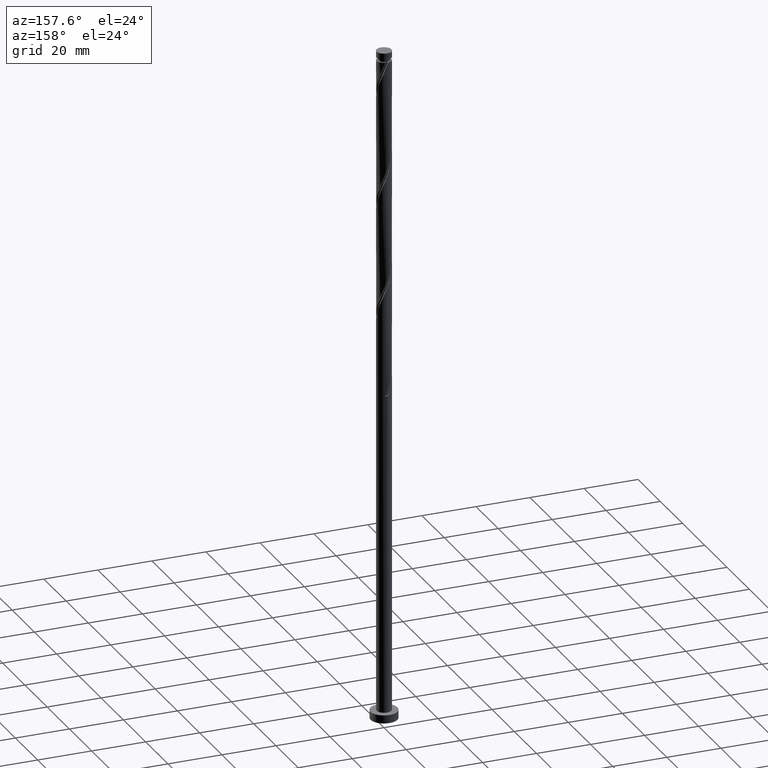
[diagram: clean part render]
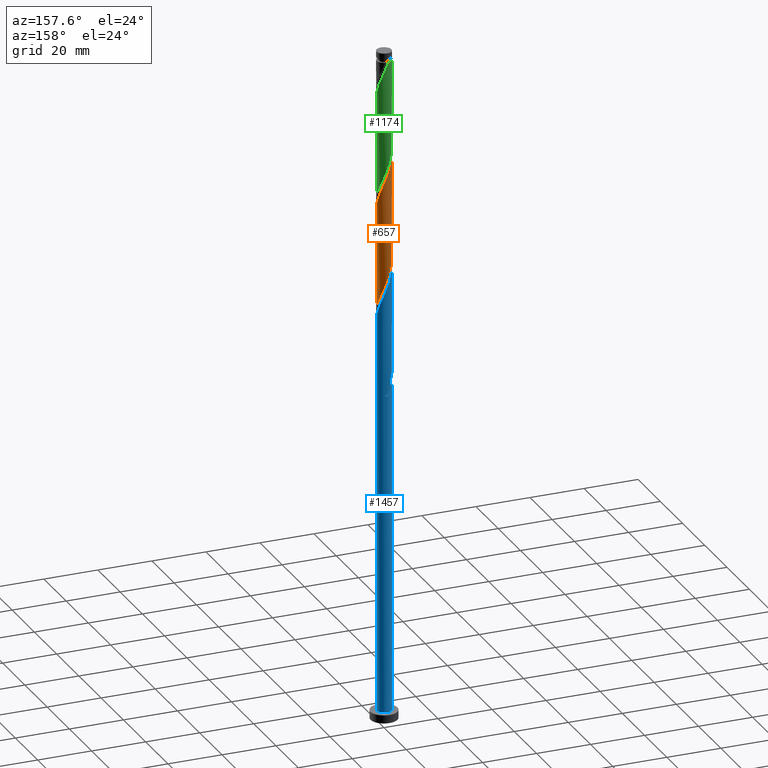
[diagram: same view with three faces highlighted in distinct colors, each labeled with its STEP entity id]
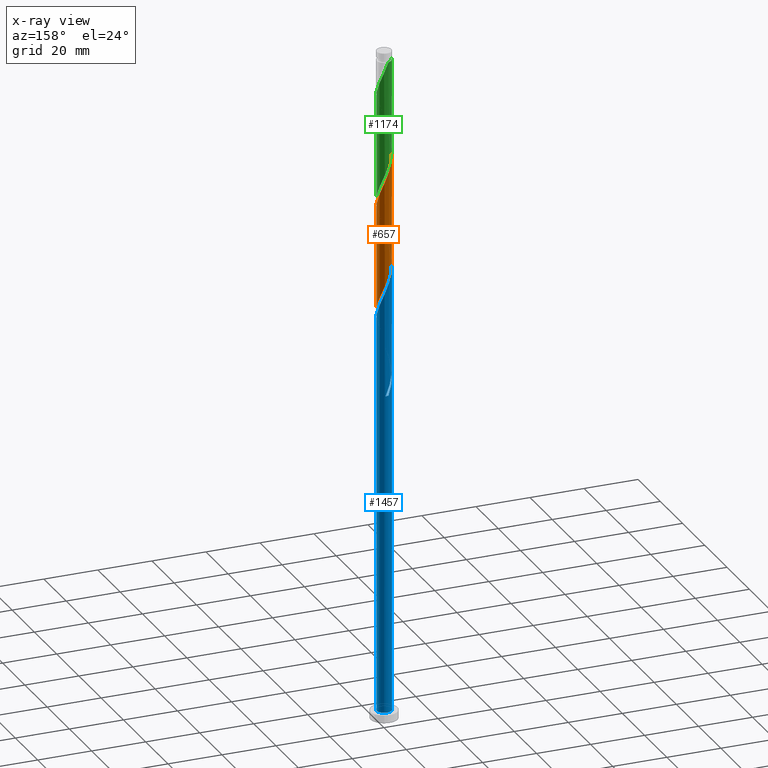
[diagram: x-ray of the same camera — body ghosted, the three highlighted faces saturated]
A machine part, auxiliary view with three faces highlighted in distinct colors.
The next image is the same camera in x-ray (body ghosted, the three faces saturated) — at least one of them is partly hidden behind the body in this view.
Their STEP definitions:

[orange] entity #657 — the highlighted cylindrical surface (edge-blend (fillet) strip) has radius 2.75 mm, axis along (-0, -0, -1).
#30 = CARTESIAN_POINT ( 'NONE',  ( 2.713923848296357022, 0.4439789923501885616, 155.2497441375573430 ) ) ;
#31 = CARTESIAN_POINT ( 'NONE',  ( 2.749999999999999556, 2.811716444257881185E-15, 154.1738198596030429 ) ) ;
#47 = CARTESIAN_POINT ( 'NONE',  ( 2.750000000000000000, 3.367778697655221012E-16, 250.0000000000000000 ) ) ;
#50 = CARTESIAN_POINT ( 'NONE',  ( -1.995858784247014128, 1.921078838710649883, 208.9356415734548023 ) ) ;
#53 = CARTESIAN_POINT ( 'NONE',  ( 2.397607013737352855, 1.387615508300211076, 157.6535902914035034 ) ) ;
#82 = CARTESIAN_POINT ( 'NONE',  ( -2.660015038536180487, 0.7735090083245236281, 212.1407697785830067 ) ) ;
#94 = CARTESIAN_POINT ( 'NONE',  ( 2.750000000000004441, 2.273302657059545426E-15, 193.1846427744859227 ) ) ;
#104 = CARTESIAN_POINT ( 'NONE',  ( 2.503981196414457155, 1.184936436776526492, 196.1151287529419847 ) ) ;
#131 = CARTESIAN_POINT ( 'NONE',  ( 0.5472430904086438286, 2.694999999999998508, 163.2625646503778967 ) ) ;
#141 = CARTESIAN_POINT ( 'NONE',  ( -2.749999999999999556, 1.915855726114013589E-14, 175.0071531929363289 ) ) ;
#181 =( BOUNDED_CURVE ( )  B_SPLINE_CURVE ( 2, ( #94, #196, #1660, #1350, #1044, #104, #1230, #1362, #1671, #1318, #1786, #1106, #1521, #253, #686, #1240, #345, #488, #1812, #334, #897, #50, #928, #226, #793, #82, #382, #523, #1650 ),
 .UNSPECIFIED., .F., .T. ) 
 B_SPLINE_CURVE_WITH_KNOTS ( ( 3, 2, 2, 2, 2, 2, 2, 2, 2, 2, 2, 2, 2, 2, 3 ),
 ( 0.4295271625973832719, 0.4326923076923077094, 0.4423076923076922906, 0.4519230769230768718, 0.4615384615384615641, 0.4711538461538461453, 0.4807692307692307265, 0.4903846153846154188, 0.5000000000000000000, 0.5096153846153845812, 0.5192307692307691624, 0.5288461538461538547, 0.5384615384615384359, 0.5480769230769231282, 0.5545271625973832164 ),
 .UNSPECIFIED. ) 
 CURVE ( )  GEOMETRIC_REPRESENTATION_ITEM ( )  RATIONAL_B_SPLINE_CURVE ( ( 0.9061636035682953949, 0.9069090390690839332, 0.9090909090909405910, 0.9024626128164440209, 0.9090909090909405910, 0.9024626128164440209, 0.9090909090909405910, 0.9024626128164440209, 0.9090909090909405910, 0.9024626128164440209, 0.9090909090909405910, 0.9024626128164440209, 0.9090909090909405910, 0.9024626128164440209, 0.9090909090909405910, 0.9024626128164440209, 0.9090909090909405910, 0.9024626128164440209, 0.9090909090909405910, 0.9024626128164440209, 0.9090909090909405910, 0.9024626128164440209, 0.9090909090909405910, 0.9024626128164440209, 0.9090909090909405910, 0.9024626128164440209, 0.9090909090909405910, 0.9046444828383006787, 0.9061636035682953949 ) ) 
 REPRESENTATION_ITEM ( '' )  );
#196 = CARTESIAN_POINT ( 'NONE',  ( 2.750000000000004441, 0.1093761084261120065, 193.4488136901189250 ) ) ;
#226 = CARTESIAN_POINT ( 'NONE',  ( -2.397607013737356407, 1.387615508300215961, 210.5382056760189187 ) ) ;
#253 = CARTESIAN_POINT ( 'NONE',  ( 0.4472398745841544843, 2.733856742000169149, 202.5253851631983366 ) ) ;
#269 = CARTESIAN_POINT ( 'NONE',  ( -2.147646203141602150, 1.749746260841628764, 170.4741031119162926 ) ) ;
#290 = CARTESIAN_POINT ( 'NONE',  ( -1.666497818918482698, 2.212867192295493002, 168.8715390093522046 ) ) ;
#303 = CARTESIAN_POINT ( 'NONE',  ( 1.478118496867735887, 2.342896049852674079, 160.8587184965316794 ) ) ;
#330 = CARTESIAN_POINT ( 'NONE',  ( 2.749999999999999556, 2.811716444257881185E-15, 154.1738198596030429 ) ) ;
#334 = CARTESIAN_POINT ( 'NONE',  ( -1.478118496867737219, 2.342896049852679852, 207.3330774708906858 ) ) ;
#340 = FACE_OUTER_BOUND ( 'NONE', #1052, .T. ) ;
#345 = CARTESIAN_POINT ( 'NONE',  ( -0.5472430904086431624, 2.695000000000004725, 204.9292313170445254 ) ) ;
#382 = CARTESIAN_POINT ( 'NONE',  ( -2.713923848296361019, 0.4439789923501905600, 212.9420518298650222 ) ) ;
#435 = CARTESIAN_POINT ( 'NONE',  ( 0.8744753351926368712, 2.628552658657902885, 162.4612825990958527 ) ) ;
#488 = CARTESIAN_POINT ( 'NONE',  ( -0.8744753351926366491, 2.628552658657907770, 205.7305133683265979 ) ) ;
#489 = EDGE_CURVE ( 'NONE', #1800, #1674, #181, .T. ) ;
#523 = CARTESIAN_POINT ( 'NONE',  ( -2.750000000000003553, 0.2234552059768777077, 213.4782753704710387 ) ) ;
#527 = ORIENTED_EDGE ( 'NONE', *, *, #489, .F. ) ;
#557 = AXIS2_PLACEMENT_3D ( 'NONE', #901, #1742, #1599 ) ;
#569 = CARTESIAN_POINT ( 'NONE',  ( -0.4472398745841522083, 2.733856742000164264, 165.6664108042240287 ) ) ;
#657 = ADVANCED_FACE ( 'NONE', ( #340 ), #1031, .T. ) ;
#686 = CARTESIAN_POINT ( 'NONE',  ( 0.1136145144797537920, 2.747652041671134082, 203.3266672144804090 ) ) ;
#689 = CARTESIAN_POINT ( 'NONE',  ( -2.749999999999999112, 0.1093761084261270500, 174.7429822773033834 ) ) ;
#704 = CARTESIAN_POINT ( 'NONE',  ( 2.750000000000003997, 2.273302657059545426E-15, 193.1846427744859511 ) ) ;
#705 = CARTESIAN_POINT ( 'NONE',  ( -0.1136145144797505308, 2.747652041671128753, 164.8651287529419562 ) ) ;
#716 = CARTESIAN_POINT ( 'NONE',  ( -2.714793904153014026, 0.5512624140746722468, 173.6792313170444970 ) ) ;
#727 = VECTOR ( 'NONE', #1466, 1000.000000000000000 ) ;
#736 = ORIENTED_EDGE ( 'NONE', *, *, #1668, .F. ) ;
#767 = LINE ( 'NONE', #1062, #1050 ) ;
#771 = VERTEX_POINT ( 'NONE', #31 ) ;
#773 = CARTESIAN_POINT ( 'NONE',  ( -2.750000000000003553, -1.046915697330053620E-16, 214.0179761078192939 ) ) ;
#793 = CARTESIAN_POINT ( 'NONE',  ( -2.528811026136768447, 1.080562258312370183, 211.3394877273009342 ) ) ;
#838 = CARTESIAN_POINT ( 'NONE',  ( -0.7678692567585383433, 2.640620533989138874, 166.4676928555061011 ) ) ;
#845 = EDGE_CURVE ( 'NONE', #1800, #771, #1015, .T. ) ;
#846 = CARTESIAN_POINT ( 'NONE',  ( -2.749999999999999556, 1.915855726114013589E-14, 175.0071531929363289 ) ) ;
#868 = CARTESIAN_POINT ( 'NONE',  ( 1.995858784247011020, 1.921078838710644776, 159.2561543939675914 ) ) ;
#897 = CARTESIAN_POINT ( 'NONE',  ( -1.736988640557376007, 2.131987444281664423, 208.1343595221727014 ) ) ;
#899 = CARTESIAN_POINT ( 'NONE',  ( 2.749999999999999112, 0.2234552059768757648, 154.7135205969513549 ) ) ;
#901 = CARTESIAN_POINT ( 'NONE',  ( 0.000000000000000000, 0.000000000000000000, 250.0000000000000000 ) ) ;
#928 = CARTESIAN_POINT ( 'NONE',  ( -2.196732898992184158, 1.654347173505433144, 209.7369236247368747 ) ) ;
#977 = CARTESIAN_POINT ( 'NONE',  ( -2.741313281104775790, 0.2184067188494087652, 174.4805133683265126 ) ) ;
#985 = CARTESIAN_POINT ( 'NONE',  ( 1.176296916030187489, 2.485724354255287594, 161.6600005478137234 ) ) ;
#997 = CARTESIAN_POINT ( 'NONE',  ( 2.196732898992181937, 1.654347173505428037, 158.4548723426855474 ) ) ;
#1015 = LINE ( 'NONE', #47, #727 ) ;
#1031 = CYLINDRICAL_SURFACE ( 'NONE', #557, 2.750000000000000000 ) ;
#1040 = CARTESIAN_POINT ( 'NONE',  ( 2.528811026136764006, 1.080562258312366630, 156.8523082401214310 ) ) ;
#1044 = CARTESIAN_POINT ( 'NONE',  ( 2.609387550283738477, 0.8680994254255984810, 195.3138467016599691 ) ) ;
#1050 = VECTOR ( 'NONE', #1336, 1000.000000000000000 ) ;
#1052 = EDGE_LOOP ( 'NONE', ( #527, #1701, #1528, #736 ) ) ;
#1062 = CARTESIAN_POINT ( 'NONE',  ( -2.750000000000000000, 0.000000000000000000, 250.0000000000000000 ) ) ;
#1106 = CARTESIAN_POINT ( 'NONE',  ( 1.088498638932927420, 2.547384325978119257, 200.9228210606343055 ) ) ;
#1131 = CARTESIAN_POINT ( 'NONE',  ( -1.088498638932923868, 2.547384325978113928, 167.2689749067881451 ) ) ;
#1230 = CARTESIAN_POINT ( 'NONE',  ( 2.325813699778032095, 1.467341348809079626, 196.9164108042240287 ) ) ;
#1233 = VERTEX_POINT ( 'NONE', #846 ) ;
#1240 = CARTESIAN_POINT ( 'NONE',  ( -0.2200108456246495370, 2.761447341342100348, 204.1279492657624530 ) ) ;
#1245 = EDGE_CURVE ( 'NONE', #1233, #771, #1695, .T. ) ;
#1257 = CARTESIAN_POINT ( 'NONE',  ( 1.736988640557374453, 2.131987444281659094, 160.0574364452496638 ) ) ;
#1318 = CARTESIAN_POINT ( 'NONE',  ( 1.666497818918487361, 2.212867192295495666, 199.3202569580702175 ) ) ;
#1336 = DIRECTION ( 'NONE',  ( -0.000000000000000000, -0.000000000000000000, -1.000000000000000000 ) ) ;
#1350 = CARTESIAN_POINT ( 'NONE',  ( 2.714793904153019355, 0.5512624140746722468, 194.5125646503778967 ) ) ;
#1362 = CARTESIAN_POINT ( 'NONE',  ( 2.147646203141607479, 1.749746260841630097, 197.7176928555061011 ) ) ;
#1393 = CARTESIAN_POINT ( 'NONE',  ( 0.2200108456246512301, 2.761447341342095019, 164.0638467016598838 ) ) ;
#1403 = CARTESIAN_POINT ( 'NONE',  ( -1.377498228925702728, 2.380125759136805463, 168.0702569580701606 ) ) ;
#1466 = DIRECTION ( 'NONE',  ( -0.000000000000000000, -0.000000000000000000, -1.000000000000000000 ) ) ;
#1521 = CARTESIAN_POINT ( 'NONE',  ( 0.7678692567585421180, 2.640620533989142871, 201.7241031119163210 ) ) ;
#1528 = ORIENTED_EDGE ( 'NONE', *, *, #1245, .F. ) ;
#1537 = CARTESIAN_POINT ( 'NONE',  ( -2.325813699778025434, 1.467341348809077628, 171.2753851631983650 ) ) ;
#1570 = CARTESIAN_POINT ( 'NONE',  ( -1.907072011030042091, 1.981306726568561771, 169.6728210606342770 ) ) ;
#1599 = DIRECTION ( 'NONE',  ( -1.000000000000000000, 0.000000000000000000, 0.000000000000000000 ) ) ;
#1650 = CARTESIAN_POINT ( 'NONE',  ( -2.750000000000003553, -1.046915697330053743E-16, 214.0179761078192939 ) ) ;
#1660 = CARTESIAN_POINT ( 'NONE',  ( 2.741313281104781119, 0.2184067188494067391, 193.7112825990957958 ) ) ;
#1668 = EDGE_CURVE ( 'NONE', #1674, #1233, #767, .T. ) ;
#1671 = CARTESIAN_POINT ( 'NONE',  ( 1.907072011030046754, 1.981306726568563992, 198.5189749067881451 ) ) ;
#1674 = VERTEX_POINT ( 'NONE', #773 ) ;
#1686 = CARTESIAN_POINT ( 'NONE',  ( -2.503981196414451382, 1.184936436776526492, 172.0766672144803806 ) ) ;
#1695 =( BOUNDED_CURVE ( )  B_SPLINE_CURVE ( 2, ( #141, #689, #977, #716, #1818, #1686, #1537, #269, #1570, #290, #1403, #1131, #838, #569, #705, #1393, #131, #435, #985, #303, #1257, #868, #997, #53, #1040, #1730, #30, #899, #330 ),
 .UNSPECIFIED., .F., .T. ) 
 B_SPLINE_CURVE_WITH_KNOTS ( ( 3, 2, 2, 2, 2, 2, 2, 2, 2, 2, 2, 2, 2, 2, 3 ),
 ( 0.6795271625973836604, 0.6826923076923077094, 0.6923076923076922906, 0.7019230769230768718, 0.7115384615384615641, 0.7211538461538461453, 0.7307692307692307265, 0.7403846153846154188, 0.7500000000000000000, 0.7596153846153845812, 0.7692307692307692735, 0.7788461538461538547, 0.7884615384615384359, 0.7980769230769231282, 0.8045271625973832164 ),
 .UNSPECIFIED. ) 
 CURVE ( )  GEOMETRIC_REPRESENTATION_ITEM ( )  RATIONAL_B_SPLINE_CURVE ( ( 0.9061636035682884005, 0.9069090390690770498, 0.9090909090909334855, 0.9024626128164369154, 0.9090909090909334855, 0.9024626128164369154, 0.9090909090909334855, 0.9024626128164369154, 0.9090909090909334855, 0.9024626128164369154, 0.9090909090909334855, 0.9024626128164369154, 0.9090909090909334855, 0.9024626128164369154, 0.9090909090909334855, 0.9024626128164369154, 0.9090909090909334855, 0.9024626128164369154, 0.9090909090909334855, 0.9024626128164369154, 0.9090909090909334855, 0.9024626128164369154, 0.9090909090909334855, 0.9024626128164369154, 0.9090909090909334855, 0.9024626128164369154, 0.9090909090909334855, 0.9046444828382935732, 0.9061636035682881785 ) ) 
 REPRESENTATION_ITEM ( '' )  );
#1701 = ORIENTED_EDGE ( 'NONE', *, *, #845, .T. ) ;
#1730 = CARTESIAN_POINT ( 'NONE',  ( 2.660015038536175602, 0.7735090083245201864, 156.0510261888393018 ) ) ;
#1742 = DIRECTION ( 'NONE',  ( -0.000000000000000000, -0.000000000000000000, -1.000000000000000000 ) ) ;
#1786 = CARTESIAN_POINT ( 'NONE',  ( 1.377498228925707391, 2.380125759136808128, 200.1215390093522331 ) ) ;
#1800 = VERTEX_POINT ( 'NONE', #704 ) ;
#1812 = CARTESIAN_POINT ( 'NONE',  ( -1.176296916030186823, 2.485724354255293811, 206.5317954196086703 ) ) ;
#1818 = CARTESIAN_POINT ( 'NONE',  ( -2.609387550283733592, 0.8680994254255998133, 172.8779492657625099 ) ) ;

[blue] entity #1457 — the highlighted cylindrical surface (edge-blend (fillet) strip) has radius 2.75 mm, axis along (-0, -0, -1).
#4 = CARTESIAN_POINT ( 'NONE',  ( -1.666497818918482698, 2.212867192295493002, 127.2048723426855474 ) ) ;
#5 = CARTESIAN_POINT ( 'NONE',  ( -0.5472430904086431624, 2.695000000000004725, 163.2625646503779251 ) ) ;
#23 = CARTESIAN_POINT ( 'NONE',  ( 2.503981196414457155, 1.184936436776526492, 154.4484620862753275 ) ) ;
#32 = CARTESIAN_POINT ( 'NONE',  ( 0.000000000000000000, 0.000000000000000000, 3.000000000000000000 ) ) ;
#62 = ORIENTED_EDGE ( 'NONE', *, *, #583, .T. ) ;
#90 = EDGE_CURVE ( 'NONE', #968, #119, #1585, .T. ) ;
#118 = ORIENTED_EDGE ( 'NONE', *, *, #1222, .F. ) ;
#119 = VERTEX_POINT ( 'NONE', #1032 ) ;
#121 = CARTESIAN_POINT ( 'NONE',  ( -0.8744753351926366491, 2.628552658657907770, 164.0638467016599407 ) ) ;
#127 = EDGE_CURVE ( 'NONE', #1231, #968, #1468, .T. ) ;
#130 = VECTOR ( 'NONE', #1208, 1000.000000000000000 ) ;
#133 = CARTESIAN_POINT ( 'NONE',  ( 0.5472430904086438286, 2.694999999999998508, 121.5958979837111826 ) ) ;
#137 = LINE ( 'NONE', #1235, #875 ) ;
#150 = CARTESIAN_POINT ( 'NONE',  ( -2.609387550283733592, 0.8680994254255998133, 131.2112825990958527 ) ) ;
#151 = CARTESIAN_POINT ( 'NONE',  ( 2.714793904153019355, 0.5512624140746722468, 152.8458979837112395 ) ) ;
#168 = CARTESIAN_POINT ( 'NONE',  ( -1.176296916030186823, 2.485724354255293811, 123.1984620862752848 ) ) ;
#183 = DIRECTION ( 'NONE',  ( 0.000000000000000000, 0.000000000000000000, 1.000000000000000000 ) ) ;
#190 = EDGE_CURVE ( 'NONE', #902, #119, #137, .T. ) ;
#206 = LINE ( 'NONE', #753, #671 ) ;
#258 = CARTESIAN_POINT ( 'NONE',  ( -1.088498638932923868, 2.547384325978113928, 125.6023082401214168 ) ) ;
#260 = CARTESIAN_POINT ( 'NONE',  ( -1.736988640557376007, 2.131987444281664423, 166.4676928555061011 ) ) ;
#278 = CARTESIAN_POINT ( 'NONE',  ( -2.325813699778025434, 1.467341348809077628, 129.6087184965316794 ) ) ;
#281 = CARTESIAN_POINT ( 'NONE',  ( -2.713923848296361019, 0.4439789923501905600, 171.2753851631983650 ) ) ;
#292 = DIRECTION ( 'NONE',  ( 0.000000000000000000, 1.000000000000000000, -3.532527805625498141E-14 ) ) ;
#312 = CARTESIAN_POINT ( 'NONE',  ( -2.660015038536180487, 0.7735090083245236281, 128.8074364452496638 ) ) ;
#320 = CARTESIAN_POINT ( 'NONE',  ( -2.750000000000003553, 0.2234552059768777077, 130.1449420371376675 ) ) ;
#338 = ORIENTED_EDGE ( 'NONE', *, *, #90, .T. ) ;
#347 = EDGE_LOOP ( 'NONE', ( #1387, #880, #338, #759, #560, #62, #118, #607 ) ) ;
#371 =( BOUNDED_CURVE ( )  B_SPLINE_CURVE ( 2, ( #1259, #1828, #419, #151, #1290, #23, #1279, #599, #570, #1693, #1680, #408, #978, #969, #707, #1531, #5, #121, #579, #1134, #260, #591, #830, #1388, #1539, #986, #281, #848, #1329 ),
 .UNSPECIFIED., .F., .T. ) 
 B_SPLINE_CURVE_WITH_KNOTS ( ( 3, 2, 2, 2, 2, 2, 2, 2, 2, 2, 2, 2, 2, 2, 3 ),
 ( 0.1795271625973832164, 0.1826923076923077094, 0.1923076923076922906, 0.2019230769230768718, 0.2115384615384615641, 0.2211538461538461453, 0.2307692307692307265, 0.2403846153846154188, 0.2500000000000000000, 0.2596153846153845812, 0.2692307692307692735, 0.2788461538461538547, 0.2884615384615384359, 0.2980769230769231282, 0.3045271625973833829 ),
 .UNSPECIFIED. ) 
 CURVE ( )  GEOMETRIC_REPRESENTATION_ITEM ( )  RATIONAL_B_SPLINE_CURVE ( ( 0.9061636035682953949, 0.9069090390690839332, 0.9090909090909405910, 0.9024626128164440209, 0.9090909090909405910, 0.9024626128164440209, 0.9090909090909405910, 0.9024626128164440209, 0.9090909090909405910, 0.9024626128164440209, 0.9090909090909405910, 0.9024626128164440209, 0.9090909090909405910, 0.9024626128164440209, 0.9090909090909405910, 0.9024626128164440209, 0.9090909090909405910, 0.9024626128164440209, 0.9090909090909405910, 0.9024626128164440209, 0.9090909090909405910, 0.9024626128164440209, 0.9090909090909405910, 0.9024626128164440209, 0.9090909090909405910, 0.9024626128164440209, 0.9090909090909405910, 0.9046444828383005676, 0.9061636035682955059 ) ) 
 REPRESENTATION_ITEM ( '' )  );
#408 = CARTESIAN_POINT ( 'NONE',  ( 1.088498638932927420, 2.547384325978119257, 159.2561543939676199 ) ) ;
#418 = CARTESIAN_POINT ( 'NONE',  ( 2.750000000000003997, 2.273302657059545426E-15, 151.5179761078192939 ) ) ;
#419 = CARTESIAN_POINT ( 'NONE',  ( 2.741313281104781119, 0.2184067188494067391, 152.0446159324291671 ) ) ;
#424 = CARTESIAN_POINT ( 'NONE',  ( -0.4472398745841522083, 2.733856742000164264, 123.9997441375573146 ) ) ;
#430 = DIRECTION ( 'NONE',  ( -0.000000000000000000, -0.000000000000000000, -1.000000000000000000 ) ) ;
#434 =( BOUNDED_CURVE ( )  B_SPLINE_CURVE ( 2, ( #1304, #461, #168, #613, #453, #1598, #1154, #885, #1313, #312, #1741, #320, #1447 ),
 .UNSPECIFIED., .F., .T. ) 
 B_SPLINE_CURVE_WITH_KNOTS ( ( 3, 2, 2, 2, 2, 2, 3 ),
 ( 0.000000000000000000, 0.009615384615384582959, 0.01923076923076927347, 0.02884615384615385469, 0.03846153846153842898, 0.04807692307692312816, 0.05452716259738321636 ),
 .UNSPECIFIED. ) 
 CURVE ( )  GEOMETRIC_REPRESENTATION_ITEM ( )  RATIONAL_B_SPLINE_CURVE ( ( 0.9090909090909405910, 0.9024626128164440209, 0.9090909090909405910, 0.9024626128164440209, 0.9090909090909405910, 0.9024626128164440209, 0.9090909090909405910, 0.9024626128164440209, 0.9090909090909405910, 0.9024626128164440209, 0.9090909090909405910, 0.9046444828383006787, 0.9061636035682953949 ) ) 
 REPRESENTATION_ITEM ( '' )  );
#444 = CARTESIAN_POINT ( 'NONE',  ( -0.1136145144797505308, 2.747652041671128753, 123.1984620862752848 ) ) ;
#453 = CARTESIAN_POINT ( 'NONE',  ( -1.736988640557376007, 2.131987444281664423, 124.8010261888394012 ) ) ;
#461 = CARTESIAN_POINT ( 'NONE',  ( -0.8744753351926366491, 2.628552658657907770, 122.3971800349932408 ) ) ;
#483 = DIRECTION ( 'NONE',  ( -0.000000000000000000, -0.000000000000000000, -1.000000000000000000 ) ) ;
#559 = CARTESIAN_POINT ( 'NONE',  ( -1.907072011030042091, 1.981306726568561771, 128.0061543939676199 ) ) ;
#560 = ORIENTED_EDGE ( 'NONE', *, *, #1269, .F. ) ;
#562 = DIRECTION ( 'NONE',  ( -1.120541058552572224E-29, -3.784851220313032054E-14, -1.000000000000000000 ) ) ;
#570 = CARTESIAN_POINT ( 'NONE',  ( 1.907072011030046754, 1.981306726568563992, 156.8523082401214594 ) ) ;
#576 = CARTESIAN_POINT ( 'NONE',  ( 0.2200108456246512301, 2.761447341342095019, 122.3971800349932550 ) ) ;
#579 = CARTESIAN_POINT ( 'NONE',  ( -1.176296916030186823, 2.485724354255293811, 164.8651287529420131 ) ) ;
#583 = EDGE_CURVE ( 'NONE', #1692, #612, #1284, .T. ) ;
#591 = CARTESIAN_POINT ( 'NONE',  ( -1.995858784247014128, 1.921078838710649883, 167.2689749067881166 ) ) ;
#599 = CARTESIAN_POINT ( 'NONE',  ( 2.147646203141607479, 1.749746260841630097, 156.0510261888393870 ) ) ;
#603 = FACE_OUTER_BOUND ( 'NONE', #347, .T. ) ;
#607 = ORIENTED_EDGE ( 'NONE', *, *, #870, .F. ) ;
#612 = VERTEX_POINT ( 'NONE', #133 ) ;
#613 = CARTESIAN_POINT ( 'NONE',  ( -1.478118496867737219, 2.342896049852679852, 123.9997441375573288 ) ) ;
#623 = EDGE_CURVE ( 'NONE', #1231, #1795, #371, .T. ) ;
#648 = CARTESIAN_POINT ( 'NONE',  ( -0.5472430904086430514, 2.695000000000004281, 121.5958979837111826 ) ) ;
#671 = VECTOR ( 'NONE', #1024, 1000.000000000000000 ) ;
#707 = CARTESIAN_POINT ( 'NONE',  ( 0.1136145144797537920, 2.747652041671134082, 161.6600005478137518 ) ) ;
#753 = CARTESIAN_POINT ( 'NONE',  ( -2.750000000000000000, 0.000000000000000000, 250.0000000000000000 ) ) ;
#759 = ORIENTED_EDGE ( 'NONE', *, *, #190, .F. ) ;
#805 = CARTESIAN_POINT ( 'NONE',  ( -2.749999999999999556, 3.798808387454795695E-15, 133.3404865262697001 ) ) ;
#828 = CARTESIAN_POINT ( 'NONE',  ( 0.5472430904086438286, 2.694999999999998508, 121.5958979837111826 ) ) ;
#830 = CARTESIAN_POINT ( 'NONE',  ( -2.196732898992184158, 1.654347173505433144, 168.0702569580701891 ) ) ;
#839 = CARTESIAN_POINT ( 'NONE',  ( 0.000000000000000000, 0.000000000000000000, 121.5958979837112821 ) ) ;
#848 = CARTESIAN_POINT ( 'NONE',  ( -2.750000000000003997, 0.2234552059768719623, 171.8116087038042963 ) ) ;
#870 = EDGE_CURVE ( 'NONE', #1795, #1623, #206, .T. ) ;
#875 = VECTOR ( 'NONE', #430, 1000.000000000000000 ) ;
#880 = ORIENTED_EDGE ( 'NONE', *, *, #127, .T. ) ;
#885 = CARTESIAN_POINT ( 'NONE',  ( -2.397607013737356407, 1.387615508300215961, 127.2048723426855759 ) ) ;
#902 = VERTEX_POINT ( 'NONE', #1315 ) ;
#961 = CARTESIAN_POINT ( 'NONE',  ( 2.750000000000000000, 3.367778697655221012E-16, 3.000000000000000000 ) ) ;
#968 = VERTEX_POINT ( 'NONE', #961 ) ;
#969 = CARTESIAN_POINT ( 'NONE',  ( 0.4472398745841544843, 2.733856742000169149, 160.8587184965317078 ) ) ;
#978 = CARTESIAN_POINT ( 'NONE',  ( 0.7678692567585421180, 2.640620533989142871, 160.0574364452496638 ) ) ;
#986 = CARTESIAN_POINT ( 'NONE',  ( -2.660015038536180487, 0.7735090083245236281, 170.4741031119163210 ) ) ;
#1006 = CARTESIAN_POINT ( 'NONE',  ( -2.749999999999999112, 0.1093761084261270500, 133.0763156106367546 ) ) ;
#1024 = DIRECTION ( 'NONE',  ( -0.000000000000000000, -0.000000000000000000, -1.000000000000000000 ) ) ;
#1025 = DIRECTION ( 'NONE',  ( 1.000000000000000000, 0.000000000000000000, 0.000000000000000000 ) ) ;
#1032 = CARTESIAN_POINT ( 'NONE',  ( -2.750000000000000000, 0.000000000000000000, 3.000000000000000000 ) ) ;
#1112 = CARTESIAN_POINT ( 'NONE',  ( -2.503981196414451382, 1.184936436776526492, 130.4100005478137518 ) ) ;
#1134 = CARTESIAN_POINT ( 'NONE',  ( -1.478118496867737219, 2.342896049852679852, 165.6664108042240002 ) ) ;
#1143 = CARTESIAN_POINT ( 'NONE',  ( -2.741313281104775790, 0.2184067188494087652, 132.8138467016599122 ) ) ;
#1154 = CARTESIAN_POINT ( 'NONE',  ( -2.196732898992184158, 1.654347173505433144, 126.4035902914034892 ) ) ;
#1194 = CARTESIAN_POINT ( 'NONE',  ( 2.750000000000000000, 3.367778697655221012E-16, 250.0000000000000000 ) ) ;
#1208 = DIRECTION ( 'NONE',  ( -0.000000000000000000, -0.000000000000000000, -1.000000000000000000 ) ) ;
#1222 = EDGE_CURVE ( 'NONE', #1623, #612, #1499, .T. ) ;
#1231 = VERTEX_POINT ( 'NONE', #418 ) ;
#1235 = CARTESIAN_POINT ( 'NONE',  ( -2.750000000000000000, 0.000000000000000000, 250.0000000000000000 ) ) ;
#1259 = CARTESIAN_POINT ( 'NONE',  ( 2.750000000000004441, 2.273302657059545426E-15, 151.5179761078192939 ) ) ;
#1266 = CARTESIAN_POINT ( 'NONE',  ( -2.714793904153014026, 0.5512624140746722468, 132.0125646503778682 ) ) ;
#1269 = EDGE_CURVE ( 'NONE', #1692, #902, #434, .T. ) ;
#1278 = CARTESIAN_POINT ( 'NONE',  ( -0.7678692567585383433, 2.640620533989138874, 124.8010261888393870 ) ) ;
#1279 = CARTESIAN_POINT ( 'NONE',  ( 2.325813699778032095, 1.467341348809079626, 155.2497441375573430 ) ) ;
#1284 = CIRCLE ( 'NONE', #1738, 2.750000000000000000 ) ;
#1290 = CARTESIAN_POINT ( 'NONE',  ( 2.609387550283738477, 0.8680994254255984810, 153.6471800349932266 ) ) ;
#1304 = CARTESIAN_POINT ( 'NONE',  ( -0.5472430904086430514, 2.695000000000004725, 121.5958979837111826 ) ) ;
#1313 = CARTESIAN_POINT ( 'NONE',  ( -2.528811026136768447, 1.080562258312370183, 128.0061543939676199 ) ) ;
#1315 = CARTESIAN_POINT ( 'NONE',  ( -2.750000000000003553, 5.010239408650972167E-15, 130.6846427744859795 ) ) ;
#1320 = DIRECTION ( 'NONE',  ( -1.000000000000000000, 0.000000000000000000, 0.000000000000000000 ) ) ;
#1329 = CARTESIAN_POINT ( 'NONE',  ( -2.750000000000003553, 5.010239408650972956E-15, 172.3513094411526367 ) ) ;
#1387 = ORIENTED_EDGE ( 'NONE', *, *, #623, .F. ) ;
#1388 = CARTESIAN_POINT ( 'NONE',  ( -2.397607013737356407, 1.387615508300215961, 168.8715390093522331 ) ) ;
#1400 = CARTESIAN_POINT ( 'NONE',  ( -2.750000000000003553, 5.010239408650972167E-15, 172.3513094411526367 ) ) ;
#1432 = CYLINDRICAL_SURFACE ( 'NONE', #1487, 2.750000000000000000 ) ;
#1447 = CARTESIAN_POINT ( 'NONE',  ( -2.750000000000003553, 5.010239408650972167E-15, 130.6846427744859795 ) ) ;
#1457 = ADVANCED_FACE ( 'NONE', ( #603 ), #1432, .T. ) ;
#1468 = LINE ( 'NONE', #1194, #130 ) ;
#1487 = AXIS2_PLACEMENT_3D ( 'NONE', #1605, #483, #1320 ) ;
#1499 =( BOUNDED_CURVE ( )  B_SPLINE_CURVE ( 2, ( #1700, #1006, #1143, #1266, #150, #1112, #278, #1527, #559, #4, #1710, #258, #1278, #424, #444, #576, #828 ),
 .UNSPECIFIED., .F., .T. ) 
 B_SPLINE_CURVE_WITH_KNOTS ( ( 3, 2, 2, 2, 2, 2, 2, 2, 3 ),
 ( 0.9295271625973836604, 0.9326923076923077094, 0.9423076923076922906, 0.9519230769230768718, 0.9615384615384615641, 0.9711538461538461453, 0.9807692307692307265, 0.9903846153846154188, 1.000000000000000000 ),
 .UNSPECIFIED. ) 
 CURVE ( )  GEOMETRIC_REPRESENTATION_ITEM ( )  RATIONAL_B_SPLINE_CURVE ( ( 0.9061636035682884005, 0.9069090390690770498, 0.9090909090909334855, 0.9024626128164369154, 0.9090909090909334855, 0.9024626128164369154, 0.9090909090909334855, 0.9024626128164369154, 0.9090909090909334855, 0.9024626128164369154, 0.9090909090909334855, 0.9024626128164369154, 0.9090909090909334855, 0.9024626128164369154, 0.9090909090909334855, 0.9024626128164369154, 0.9090909090909334855 ) ) 
 REPRESENTATION_ITEM ( '' )  );
#1527 = CARTESIAN_POINT ( 'NONE',  ( -2.147646203141602150, 1.749746260841628764, 128.8074364452496070 ) ) ;
#1531 = CARTESIAN_POINT ( 'NONE',  ( -0.2200108456246495370, 2.761447341342100348, 162.4612825990958527 ) ) ;
#1539 = CARTESIAN_POINT ( 'NONE',  ( -2.528811026136768447, 1.080562258312370183, 169.6728210606342770 ) ) ;
#1585 = CIRCLE ( 'NONE', #1732, 2.750000000000000000 ) ;
#1598 = CARTESIAN_POINT ( 'NONE',  ( -1.995858784247014128, 1.921078838710649883, 125.6023082401214168 ) ) ;
#1605 = CARTESIAN_POINT ( 'NONE',  ( 0.000000000000000000, 0.000000000000000000, 250.0000000000000000 ) ) ;
#1623 = VERTEX_POINT ( 'NONE', #805 ) ;
#1680 = CARTESIAN_POINT ( 'NONE',  ( 1.377498228925707391, 2.380125759136808128, 158.4548723426855759 ) ) ;
#1692 = VERTEX_POINT ( 'NONE', #648 ) ;
#1693 = CARTESIAN_POINT ( 'NONE',  ( 1.666497818918487361, 2.212867192295495666, 157.6535902914035034 ) ) ;
#1700 = CARTESIAN_POINT ( 'NONE',  ( -2.749999999999999556, 3.798808387454795695E-15, 133.3404865262697001 ) ) ;
#1710 = CARTESIAN_POINT ( 'NONE',  ( -1.377498228925702728, 2.380125759136805463, 126.4035902914034892 ) ) ;
#1732 = AXIS2_PLACEMENT_3D ( 'NONE', #32, #183, #1025 ) ;
#1738 = AXIS2_PLACEMENT_3D ( 'NONE', #839, #562, #292 ) ;
#1741 = CARTESIAN_POINT ( 'NONE',  ( -2.713923848296361019, 0.4439789923501905600, 129.6087184965317078 ) ) ;
#1795 = VERTEX_POINT ( 'NONE', #1400 ) ;
#1828 = CARTESIAN_POINT ( 'NONE',  ( 2.750000000000004441, 0.1093761084261100497, 151.7821470234522394 ) ) ;

[green] entity #1174 — the highlighted cylindrical surface (edge-blend (fillet) strip) has radius 2.75 mm, axis along (-0, -0, -1).
#45 = ORIENTED_EDGE ( 'NONE', *, *, #1137, .F. ) ;
#61 = CARTESIAN_POINT ( 'NONE',  ( -2.749999999999982681, 0.000000000000000000, 246.5958979837111826 ) ) ;
#98 = CARTESIAN_POINT ( 'NONE',  ( 0.5472430904086438286, 2.694999999999998508, 204.9292313170445254 ) ) ;
#105 = EDGE_CURVE ( 'NONE', #123, #748, #1307, .T. ) ;
#108 = CARTESIAN_POINT ( 'NONE',  ( -1.907072011030042091, 1.981306726568561771, 211.3394877273009627 ) ) ;
#109 = CARTESIAN_POINT ( 'NONE',  ( 0.000000000000000000, 0.000000000000000000, 246.5958979837111826 ) ) ;
#110 = CARTESIAN_POINT ( 'NONE',  ( -2.750000000000000000, 0.000000000000000000, 250.0000000000000000 ) ) ;
#117 = CARTESIAN_POINT ( 'NONE',  ( 2.528811026136764006, 1.080562258312366630, 198.5189749067881166 ) ) ;
#123 = VERTEX_POINT ( 'NONE', #894 ) ;
#139 = DIRECTION ( 'NONE',  ( -1.000000000000000000, 0.000000000000000000, 0.000000000000000000 ) ) ;
#161 = CARTESIAN_POINT ( 'NONE',  ( -0.2200108456246573363, 2.761447341342100792, 245.7946159324291955 ) ) ;
#170 = CARTESIAN_POINT ( 'NONE',  ( 2.749999999999999556, 2.811716444257881185E-15, 195.8404865262697285 ) ) ;
#209 = EDGE_CURVE ( 'NONE', #503, #748, #1311, .T. ) ;
#247 = CARTESIAN_POINT ( 'NONE',  ( -2.147646203141602150, 1.749746260841628764, 212.1407697785829498 ) ) ;
#249 = AXIS2_PLACEMENT_3D ( 'NONE', #109, #1683, #139 ) ;
#256 = CARTESIAN_POINT ( 'NONE',  ( 2.397607013737352855, 1.387615508300211076, 199.3202569580701606 ) ) ;
#271 = CARTESIAN_POINT ( 'NONE',  ( 1.666497818918487361, 2.212867192295495666, 240.9869236247368463 ) ) ;
#285 = CARTESIAN_POINT ( 'NONE',  ( -1.088498638932923868, 2.547384325978113928, 208.9356415734547738 ) ) ;
#304 = CARTESIAN_POINT ( 'NONE',  ( 2.714793904153019355, 0.5512624140746722468, 236.1792313170445254 ) ) ;
#391 = CARTESIAN_POINT ( 'NONE',  ( -2.749999999999999112, 5.070063162784156390E-15, 216.6738198596030429 ) ) ;
#402 = CARTESIAN_POINT ( 'NONE',  ( 2.196732898992181937, 1.654347173505428037, 200.1215390093522331 ) ) ;
#421 = CARTESIAN_POINT ( 'NONE',  ( -2.714793904153014026, 0.5512624140746722468, 215.3458979837112111 ) ) ;
#494 = VECTOR ( 'NONE', #1835, 1000.000000000000000 ) ;
#503 = VERTEX_POINT ( 'NONE', #1123 ) ;
#515 = EDGE_LOOP ( 'NONE', ( #913, #1462, #1038, #45, #644 ) ) ;
#539 = CARTESIAN_POINT ( 'NONE',  ( 1.478118496867735887, 2.342896049852674079, 202.5253851631983650 ) ) ;
#547 = CARTESIAN_POINT ( 'NONE',  ( 1.995858784247011020, 1.921078838710644776, 200.9228210606342486 ) ) ;
#554 = CARTESIAN_POINT ( 'NONE',  ( -2.609387550283733592, 0.8680994254255998133, 214.5446159324292239 ) ) ;
#588 = DIRECTION ( 'NONE',  ( -0.000000000000000000, -0.000000000000000000, -1.000000000000000000 ) ) ;
#602 = VERTEX_POINT ( 'NONE', #691 ) ;
#604 = EDGE_CURVE ( 'NONE', #123, #602, #1778, .T. ) ;
#610 = CARTESIAN_POINT ( 'NONE',  ( 2.749999999999999556, 0.2234552059768719068, 196.3801872636180690 ) ) ;
#644 = ORIENTED_EDGE ( 'NONE', *, *, #1799, .T. ) ;
#675 = VERTEX_POINT ( 'NONE', #61 ) ;
#687 = CARTESIAN_POINT ( 'NONE',  ( 2.660015038536175602, 0.7735090083245201864, 197.7176928555060442 ) ) ;
#691 = CARTESIAN_POINT ( 'NONE',  ( -0.5472430904086544867, 2.695000000000003393, 246.5958979837112395 ) ) ;
#698 = LINE ( 'NONE', #110, #494 ) ;
#728 = CARTESIAN_POINT ( 'NONE',  ( 2.741313281104781119, 0.2184067188494067391, 235.3779492657624814 ) ) ;
#748 = VERTEX_POINT ( 'NONE', #170 ) ;
#817 = CARTESIAN_POINT ( 'NONE',  ( -0.1136145144797505308, 2.747652041671128753, 206.5317954196086419 ) ) ;
#859 = CARTESIAN_POINT ( 'NONE',  ( 0.000000000000000000, 0.000000000000000000, 250.0000000000000000 ) ) ;
#869 = CARTESIAN_POINT ( 'NONE',  ( 1.088498638932927420, 2.547384325978119257, 242.5894877273009627 ) ) ;
#894 = CARTESIAN_POINT ( 'NONE',  ( 2.750000000000003553, -3.140747091990160614E-16, 234.8513094411526367 ) ) ;
#913 = ORIENTED_EDGE ( 'NONE', *, *, #604, .F. ) ;
#991 = CARTESIAN_POINT ( 'NONE',  ( -1.666497818918482698, 2.212867192295493002, 210.5382056760189187 ) ) ;
#993 = CIRCLE ( 'NONE', #249, 2.749999999999982681 ) ;
#998 = CARTESIAN_POINT ( 'NONE',  ( 2.609387550283738477, 0.8680994254255984810, 236.9805133683266547 ) ) ;
#1002 = CARTESIAN_POINT ( 'NONE',  ( 2.713923848296357022, 0.4439789923501885616, 196.9164108042240287 ) ) ;
#1008 = CARTESIAN_POINT ( 'NONE',  ( 2.503981196414457155, 1.184936436776526492, 237.7817954196086134 ) ) ;
#1022 = AXIS2_PLACEMENT_3D ( 'NONE', #859, #588, #1386 ) ;
#1038 = ORIENTED_EDGE ( 'NONE', *, *, #209, .F. ) ;
#1115 = CARTESIAN_POINT ( 'NONE',  ( 2.750000000000003553, -3.140747091990160614E-16, 234.8513094411526367 ) ) ;
#1123 = CARTESIAN_POINT ( 'NONE',  ( -2.749999999999999112, 5.070063162784156390E-15, 216.6738198596030429 ) ) ;
#1127 = CARTESIAN_POINT ( 'NONE',  ( -2.749999999999999112, 0.1093761084261238442, 216.4096489439700974 ) ) ;
#1137 = EDGE_CURVE ( 'NONE', #675, #503, #698, .T. ) ;
#1174 = ADVANCED_FACE ( 'NONE', ( #1811 ), #1546, .T. ) ;
#1225 = CARTESIAN_POINT ( 'NONE',  ( 0.8744753351926368712, 2.628552658657902885, 204.1279492657624814 ) ) ;
#1247 = CARTESIAN_POINT ( 'NONE',  ( 1.907072011030046754, 1.981306726568563992, 240.1856415734548307 ) ) ;
#1249 = VECTOR ( 'NONE', #1743, 1000.000000000000000 ) ;
#1307 = LINE ( 'NONE', #1592, #1249 ) ;
#1311 =( BOUNDED_CURVE ( )  B_SPLINE_CURVE ( 2, ( #391, #1127, #1688, #421, #554, #1542, #1399, #247, #108, #991, #1553, #285, #1383, #1524, #817, #1367, #98, #1225, #1675, #539, #1810, #547, #402, #256, #117, #687, #1002, #610, #1420 ),
 .UNSPECIFIED., .F., .T. ) 
 B_SPLINE_CURVE_WITH_KNOTS ( ( 3, 2, 2, 2, 2, 2, 2, 2, 2, 2, 2, 2, 2, 2, 3 ),
 ( 0.4295271625973835494, 0.4326923076923077094, 0.4423076923076922906, 0.4519230769230769273, 0.4615384615384615641, 0.4711538461538461453, 0.4807692307692307820, 0.4903846153846153633, 0.5000000000000000000, 0.5096153846153845812, 0.5192307692307692735, 0.5288461538461538547, 0.5384615384615384359, 0.5480769230769231282, 0.5545271625973833274 ),
 .UNSPECIFIED. ) 
 CURVE ( )  GEOMETRIC_REPRESENTATION_ITEM ( )  RATIONAL_B_SPLINE_CURVE ( ( 0.9061636035682884005, 0.9069090390690770498, 0.9090909090909334855, 0.9024626128164369154, 0.9090909090909334855, 0.9024626128164369154, 0.9090909090909334855, 0.9024626128164369154, 0.9090909090909334855, 0.9024626128164369154, 0.9090909090909334855, 0.9024626128164369154, 0.9090909090909334855, 0.9024626128164369154, 0.9090909090909334855, 0.9024626128164369154, 0.9090909090909334855, 0.9024626128164369154, 0.9090909090909334855, 0.9024626128164369154, 0.9090909090909334855, 0.9024626128164369154, 0.9090909090909334855, 0.9024626128164369154, 0.9090909090909334855, 0.9024626128164369154, 0.9090909090909334855, 0.9046444828382935732, 0.9061636035682884005 ) ) 
 REPRESENTATION_ITEM ( '' )  );
#1367 = CARTESIAN_POINT ( 'NONE',  ( 0.2200108456246512301, 2.761447341342095019, 205.7305133683265694 ) ) ;
#1383 = CARTESIAN_POINT ( 'NONE',  ( -0.7678692567585383433, 2.640620533989138874, 208.1343595221727014 ) ) ;
#1386 = DIRECTION ( 'NONE',  ( -1.000000000000000000, 0.000000000000000000, 0.000000000000000000 ) ) ;
#1395 = CARTESIAN_POINT ( 'NONE',  ( 2.325813699778032095, 1.467341348809079626, 238.5830774708907143 ) ) ;
#1399 = CARTESIAN_POINT ( 'NONE',  ( -2.325813699778025434, 1.467341348809077628, 212.9420518298650222 ) ) ;
#1404 = CARTESIAN_POINT ( 'NONE',  ( 0.1136145144797537920, 2.747652041671134082, 244.9933338811470946 ) ) ;
#1415 = CARTESIAN_POINT ( 'NONE',  ( 2.750000000000004441, 0.1093761084261100497, 235.1154803567856106 ) ) ;
#1420 = CARTESIAN_POINT ( 'NONE',  ( 2.749999999999999556, 2.811716444257881185E-15, 195.8404865262697285 ) ) ;
#1426 = CARTESIAN_POINT ( 'NONE',  ( 0.4472398745841544843, 2.733856742000169149, 244.1920518298650791 ) ) ;
#1462 = ORIENTED_EDGE ( 'NONE', *, *, #105, .T. ) ;
#1524 = CARTESIAN_POINT ( 'NONE',  ( -0.4472398745841522083, 2.733856742000164264, 207.3330774708906574 ) ) ;
#1542 = CARTESIAN_POINT ( 'NONE',  ( -2.503981196414451382, 1.184936436776526492, 213.7433338811470378 ) ) ;
#1546 = CYLINDRICAL_SURFACE ( 'NONE', #1022, 2.750000000000000000 ) ;
#1553 = CARTESIAN_POINT ( 'NONE',  ( -1.377498228925702728, 2.380125759136805463, 209.7369236247368463 ) ) ;
#1559 = CARTESIAN_POINT ( 'NONE',  ( -0.5472430904086544867, 2.695000000000003393, 246.5958979837112395 ) ) ;
#1572 = CARTESIAN_POINT ( 'NONE',  ( 1.377498228925707391, 2.380125759136808128, 241.7882056760188902 ) ) ;
#1592 = CARTESIAN_POINT ( 'NONE',  ( 2.750000000000000000, 3.367778697655221012E-16, 250.0000000000000000 ) ) ;
#1675 = CARTESIAN_POINT ( 'NONE',  ( 1.176296916030187489, 2.485724354255287594, 203.3266672144804090 ) ) ;
#1683 = DIRECTION ( 'NONE',  ( -0.000000000000000000, -0.000000000000000000, -1.000000000000000000 ) ) ;
#1687 = CARTESIAN_POINT ( 'NONE',  ( 0.7678692567585421180, 2.640620533989142871, 243.3907697785830067 ) ) ;
#1688 = CARTESIAN_POINT ( 'NONE',  ( -2.741313281104775790, 0.2184067188494087652, 216.1471800349932550 ) ) ;
#1743 = DIRECTION ( 'NONE',  ( -0.000000000000000000, -0.000000000000000000, -1.000000000000000000 ) ) ;
#1778 =( BOUNDED_CURVE ( )  B_SPLINE_CURVE ( 2, ( #1115, #1415, #728, #304, #998, #1008, #1395, #1838, #1247, #271, #1572, #869, #1687, #1426, #1404, #161, #1559 ),
 .UNSPECIFIED., .F., .T. ) 
 B_SPLINE_CURVE_WITH_KNOTS ( ( 3, 2, 2, 2, 2, 2, 2, 2, 3 ),
 ( 0.6795271625973832164, 0.6826923076923077094, 0.6923076923076922906, 0.7019230769230769829, 0.7115384615384616751, 0.7211538461538462563, 0.7307692307692310596, 0.7403846153846156408, 0.7500000000000002220 ),
 .UNSPECIFIED. ) 
 CURVE ( )  GEOMETRIC_REPRESENTATION_ITEM ( )  RATIONAL_B_SPLINE_CURVE ( ( 0.9061636035682953949, 0.9069090390690839332, 0.9090909090909405910, 0.9024626128164440209, 0.9090909090909405910, 0.9024626128164440209, 0.9090909090909405910, 0.9024626128164440209, 0.9090909090909405910, 0.9024626128164440209, 0.9090909090909405910, 0.9024626128164440209, 0.9090909090909405910, 0.9024626128164440209, 0.9090909090909405910, 0.9024626128164439098, 0.9090909090909407020 ) ) 
 REPRESENTATION_ITEM ( '' )  );
#1799 = EDGE_CURVE ( 'NONE', #675, #602, #993, .T. ) ;
#1810 = CARTESIAN_POINT ( 'NONE',  ( 1.736988640557374453, 2.131987444281659094, 201.7241031119162926 ) ) ;
#1811 = FACE_OUTER_BOUND ( 'NONE', #515, .T. ) ;
#1835 = DIRECTION ( 'NONE',  ( -0.000000000000000000, -0.000000000000000000, -1.000000000000000000 ) ) ;
#1838 = CARTESIAN_POINT ( 'NONE',  ( 2.147646203141607479, 1.749746260841630097, 239.3843595221727298 ) ) ;